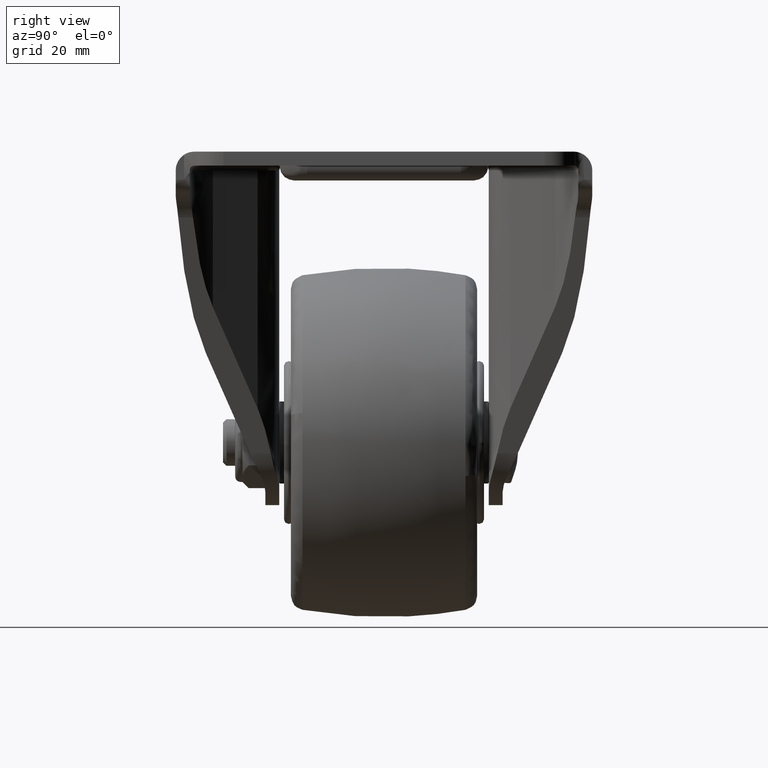
[diagram: clean part render]
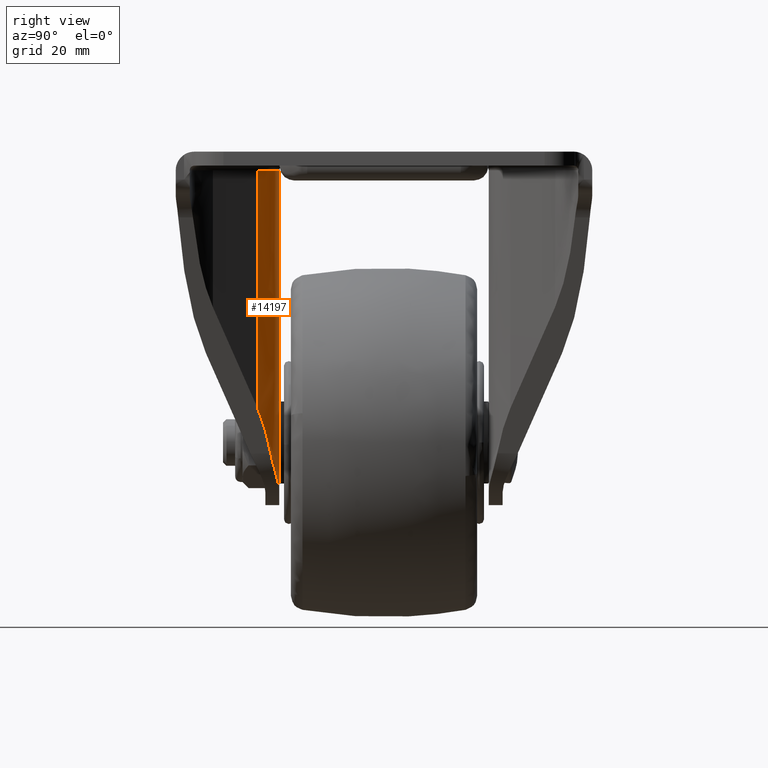
[diagram: same view with one face highlighted and labeled with its STEP entity id]
A machine part, right view. The second image highlights one B-rep face of the part: STEP entity #14197.
In plain terms, the highlighted face is a freeform B-spline surface patch.
Its self-contained STEP definition (entity closure, byte-faithful):
#12743=CARTESIAN_POINT('',(8.881149699124080,-22.499996999999851,-10.588224849900520));
#12744=VERTEX_POINT('',#12743);
#12759=CARTESIAN_POINT('',(14.506453999999900,-24.344544595174550,-2.316132000000000));
#12760=VERTEX_POINT('',#12759);
#12761=CARTESIAN_POINT('',(8.881149699124080,-22.499996999999851,-10.588224849900520));
#12762=CARTESIAN_POINT('',(9.235166229538256,-22.499997067428900,-10.328131020174810));
#12763=CARTESIAN_POINT('',(9.573210823220881,-22.519658031413169,-10.055899610654990));
#12764=CARTESIAN_POINT('',(10.219954748015850,-22.589185410835650,-9.488071319612409));
#12765=CARTESIAN_POINT('',(10.528642363693720,-22.639098001874469,-9.192471250514386));
#12766=CARTESIAN_POINT('',(11.118141602780380,-22.762219764557329,-8.578104207967735));
#12767=CARTESIAN_POINT('',(11.398948194561880,-22.835457697331940,-8.259337472653741));
#12768=CARTESIAN_POINT('',(11.799716934971610,-22.958344349733061,-7.763469791284591));
#12769=CARTESIAN_POINT('',(11.929893432866679,-23.001483460754869,-7.595222473456090));
#12770=CARTESIAN_POINT('',(12.183425978461051,-23.091402519643260,-7.252688943322547));
#12771=CARTESIAN_POINT('',(12.307014259594011,-23.138286469932471,-7.078030809694034));
#12772=CARTESIAN_POINT('',(12.664193544785560,-23.281944131421451,-6.549780192307988));
#12773=CARTESIAN_POINT('',(12.885215500817999,-23.382009843470652,-6.190733923751334));
#12774=CARTESIAN_POINT('',(13.295069599735600,-23.584561331046132,-5.458253916317402));
#12775=CARTESIAN_POINT('',(13.483896242440260,-23.687064775231189,-5.084822093448967));
#12776=CARTESIAN_POINT('',(13.830205175242920,-23.888463912157249,-4.322436864007081));
#12777=CARTESIAN_POINT('',(13.987688183398070,-23.987371937461369,-3.933486918489133));
#12778=CARTESIAN_POINT('',(14.271088455039751,-24.175199407024270,-3.138344666774621));
#12779=CARTESIAN_POINT('',(14.397012449006541,-24.264125880684119,-2.732157279116271));
#12780=CARTESIAN_POINT('',(14.506453999999900,-24.344544595174550,-2.316132000000000));
#12781=B_SPLINE_CURVE_WITH_KNOTS('',3,(#12761,#12762,#12763,#12764,#12765,#12766,#12767,#12768,#12769,#12770,#12771,#12772,#12773,#12774,#12775,#12776,#12777,#12778,#12779,#12780),.UNSPECIFIED.,.F.,.U.,(4,2,2,2,2,2,2,2,2,4),(0.0,0.125000000000000,0.250000000000000,0.375000000000000,0.437500000000000,0.500000000000000,0.625000000000000,0.750000000000000,0.875000000000000,1.0),.UNSPECIFIED.);
#12782=EDGE_CURVE('',#12744,#12760,#12781,.T.);
#12837=CARTESIAN_POINT('',(17.047939620017200,-27.146797808951000,7.344946915146090));
#12838=VERTEX_POINT('',#12837);
#12839=CARTESIAN_POINT('',(14.506453999999900,-24.344544595174550,-2.316132000000000));
#12840=CARTESIAN_POINT('',(16.061875226058195,-25.487483934344471,3.596570040446713));
#12841=CARTESIAN_POINT('',(17.047939620017232,-27.146797808950922,7.344946915146082));
#12849=(BOUNDED_CURVE()B_SPLINE_CURVE(2,(#12839,#12840,#12841),.UNSPECIFIED.,.F.,.U.)CURVE()GEOMETRIC_REPRESENTATION_ITEM()QUASI_UNIFORM_CURVE()RATIONAL_B_SPLINE_CURVE((1.0,0.979977143394950,1.0))REPRESENTATION_ITEM(''));
#12850=EDGE_CURVE('',#12760,#12838,#12849,.T.);
#14143=CARTESIAN_POINT('',(17.047939620017249,-27.146797808951050,58.500002999999801));
#14144=VERTEX_POINT('',#14143);
#14145=CARTESIAN_POINT('',(17.047939620017200,-27.146797808951000,7.344946915146090));
#14146=CARTESIAN_POINT('',(17.047939620017249,-27.146797808951050,58.500002999999801));
#14147=QUASI_UNIFORM_CURVE('',1,(#14145,#14146),.UNSPECIFIED.,.F.,.U.);
#14148=EDGE_CURVE('',#12838,#14144,#14147,.T.);
#14160=CARTESIAN_POINT('',(8.798247611889536,-22.500358730890230,-12.315430546148029));
#14161=CARTESIAN_POINT('',(8.798247611889536,-22.500358730890230,60.270388838653503));
#14162=CARTESIAN_POINT('',(14.575125497231186,-22.449944681341506,-12.315430546148033));
#14163=CARTESIAN_POINT('',(14.575125497231186,-22.449944681341506,60.270388838653496));
#14164=CARTESIAN_POINT('',(17.277611326331392,-27.555963680723881,-12.315430546148026));
#14165=CARTESIAN_POINT('',(17.277611326331392,-27.555963680723881,60.270388838653489));
#14173=(BOUNDED_SURFACE()B_SPLINE_SURFACE(1,2,((#14160,#14162,#14164),(#14161,#14163,#14165)),.UNSPECIFIED.,.F.,.F.,.U.)B_SPLINE_SURFACE_WITH_KNOTS((2,2),(3,3),(0.0,72.585819384801525),(0.0,10.647129361768791),.UNSPECIFIED.)GEOMETRIC_REPRESENTATION_ITEM()RATIONAL_B_SPLINE_SURFACE(((1.0,0.853601877455077,0.998089126636252),(1.0,0.853601877455077,0.998089126636252)))REPRESENTATION_ITEM('')SURFACE());
#14174=CARTESIAN_POINT('',(8.881149699124080,-22.499996999999851,58.500002999999801));
#14175=VERTEX_POINT('',#14174);
#14176=CARTESIAN_POINT('',(8.881149699124080,-22.499996999999851,-10.588224849900520));
#14177=CARTESIAN_POINT('',(8.881149699124080,-22.499996999999851,58.500002999999801));
#14178=QUASI_UNIFORM_CURVE('',1,(#14176,#14177),.UNSPECIFIED.,.F.,.U.);
#14179=EDGE_CURVE('',#12744,#14175,#14178,.T.);
#14180=ORIENTED_EDGE('',*,*,#14179,.T.);
#14181=CARTESIAN_POINT('',(8.881149699124080,-22.499996999999851,58.500002999999801));
#14182=CARTESIAN_POINT('',(9.546645419882212,-22.499907364429220,58.500002999999758));
#14183=CARTESIAN_POINT('',(10.621622609688110,-22.613428271416190,58.500002999999822));
#14184=CARTESIAN_POINT('',(12.250953959846269,-23.072845496764970,58.500002999999779));
#14185=CARTESIAN_POINT('',(13.905742348668561,-23.844539580864449,58.500002999999772));
#14186=CARTESIAN_POINT('',(15.660065414110850,-25.202616501281749,58.500003000000191));
#14187=CARTESIAN_POINT('',(16.642726442533860,-26.464586139500469,58.500002999999452));
#14188=CARTESIAN_POINT('',(17.047939620017249,-27.146797808951050,58.500002999999801));
#14189=B_SPLINE_CURVE_WITH_KNOTS('',3,(#14181,#14182,#14183,#14184,#14185,#14186,#14187,#14188),.UNSPECIFIED.,.F.,.U.,(4,1,1,1,1,4),(0.000000045094286,1.996470954215640,3.225077808627888,5.067964297465845,7.448388935201557,9.828801503542939),.UNSPECIFIED.);
#14190=EDGE_CURVE('',#14175,#14144,#14189,.T.);
#14191=ORIENTED_EDGE('',*,*,#14190,.T.);
#14192=ORIENTED_EDGE('',*,*,#14148,.F.);
#14193=ORIENTED_EDGE('',*,*,#12850,.F.);
#14194=ORIENTED_EDGE('',*,*,#12782,.F.);
#14195=EDGE_LOOP('',(#14180,#14191,#14192,#14193,#14194));
#14196=FACE_OUTER_BOUND('',#14195,.T.);
#14197=ADVANCED_FACE('',(#14196),#14173,.T.);